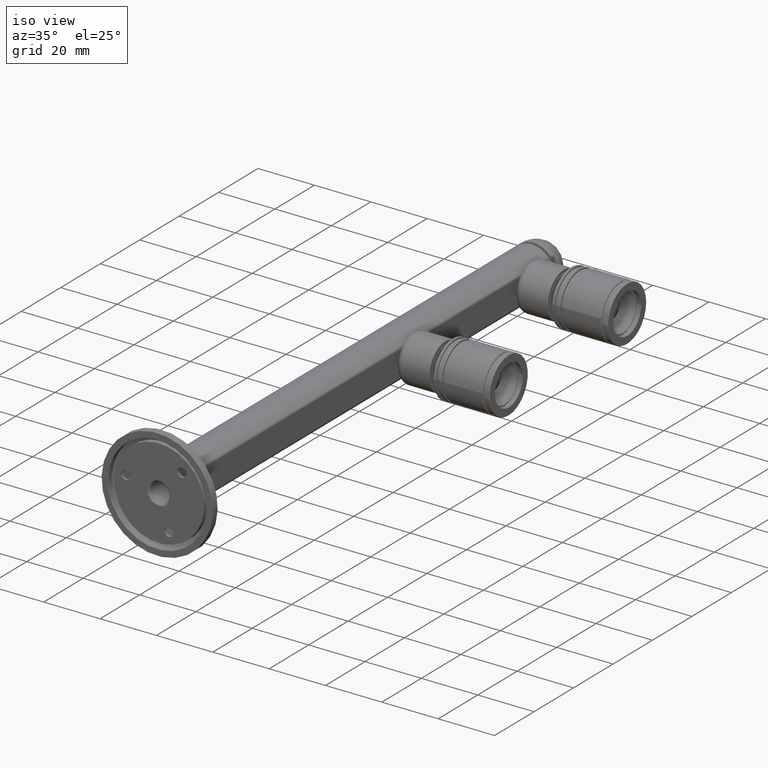
[diagram: clean part render]
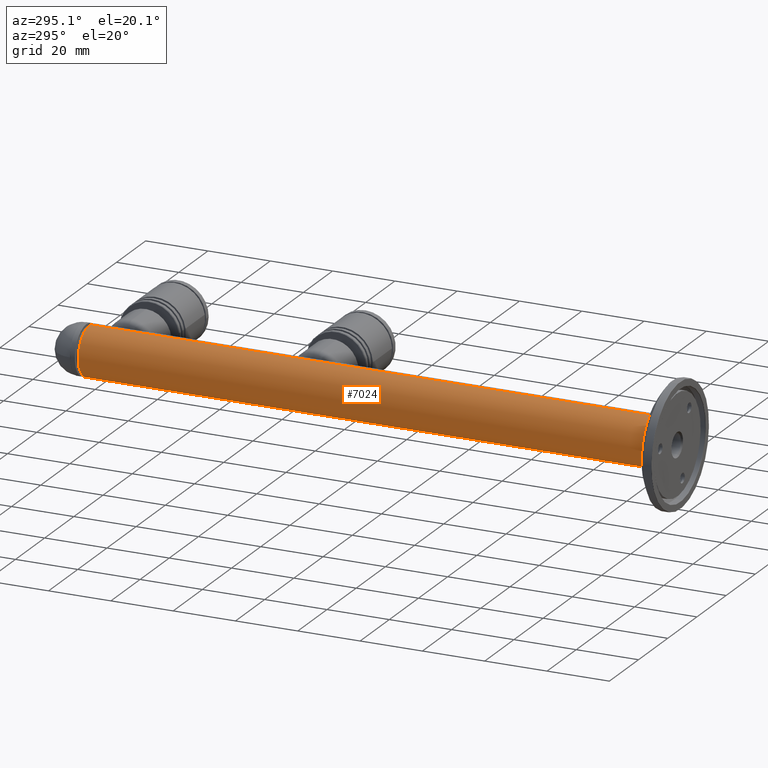
[diagram: tour spotlight — one face highlighted and labeled with its STEP entity id]
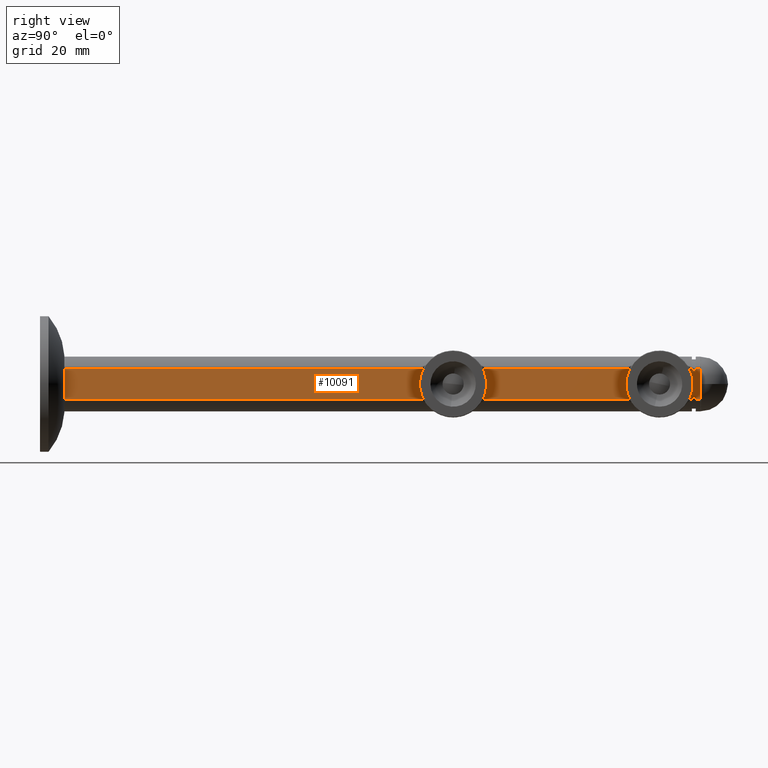
[diagram: tour spotlight — one face highlighted and labeled with its STEP entity id]
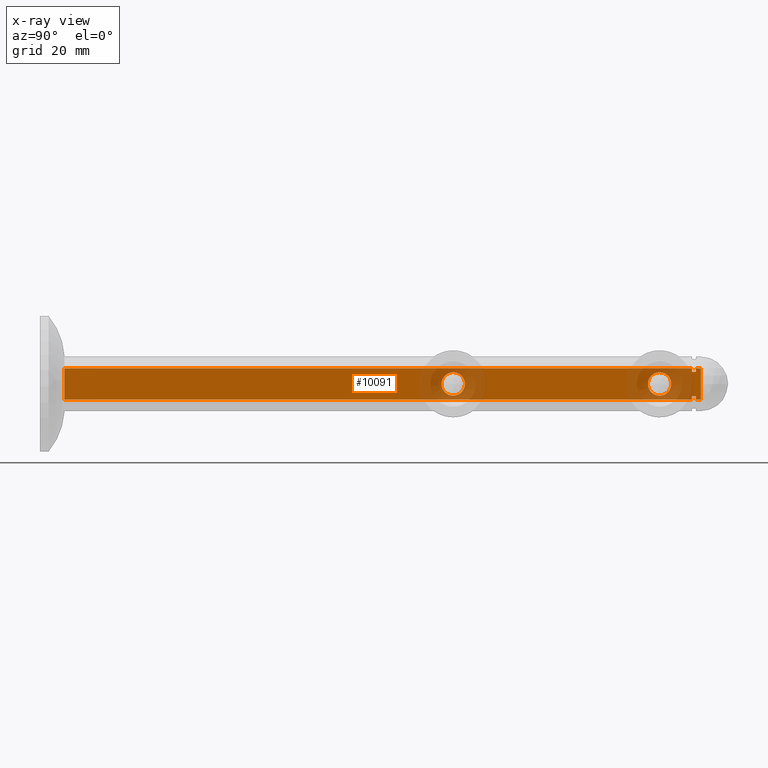
[diagram: x-ray of the same camera — body ghosted, this tour face saturated]
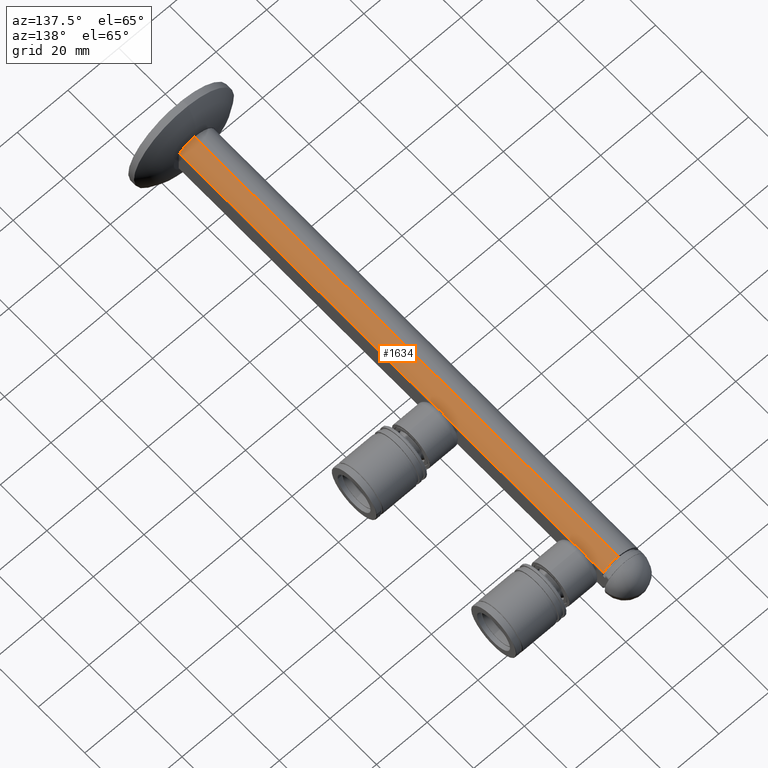
[diagram: tour spotlight — one face highlighted and labeled with its STEP entity id]
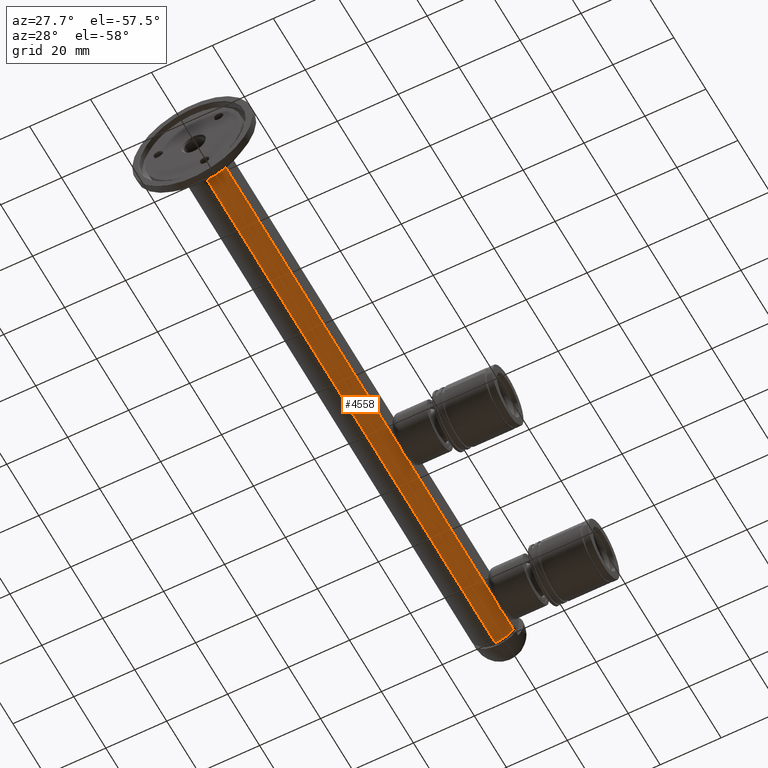
[diagram: tour spotlight — one face highlighted and labeled with its STEP entity id]
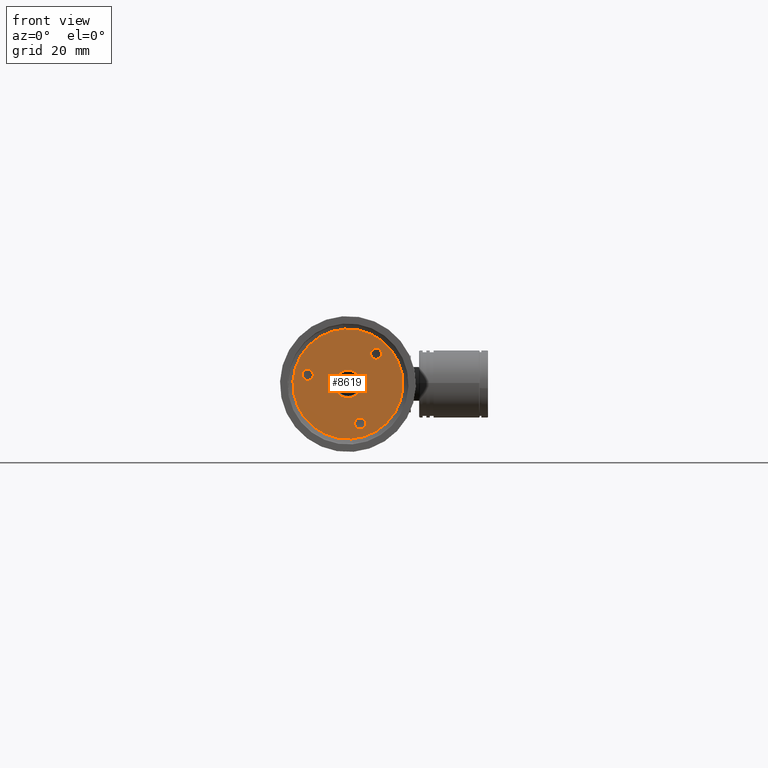
[diagram: tour spotlight — one face highlighted and labeled with its STEP entity id]
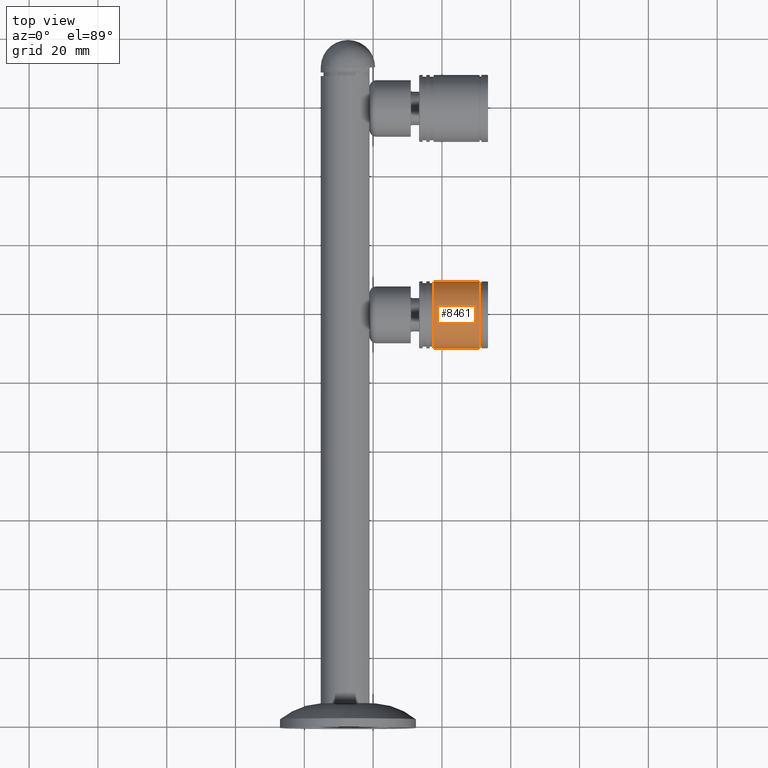
[diagram: tour spotlight — one face highlighted and labeled with its STEP entity id]
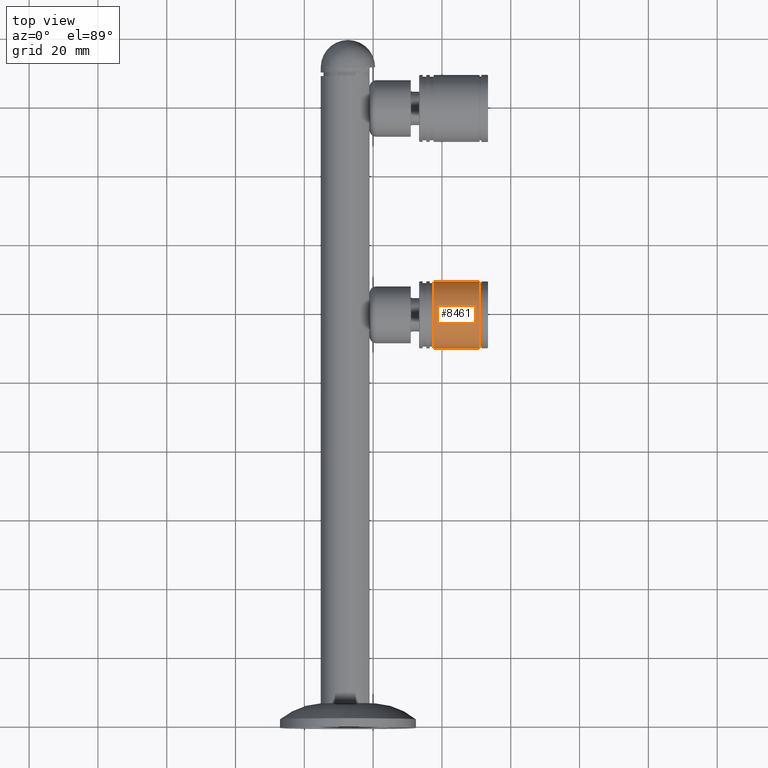
[diagram: tour spotlight — one face highlighted and labeled with its STEP entity id]
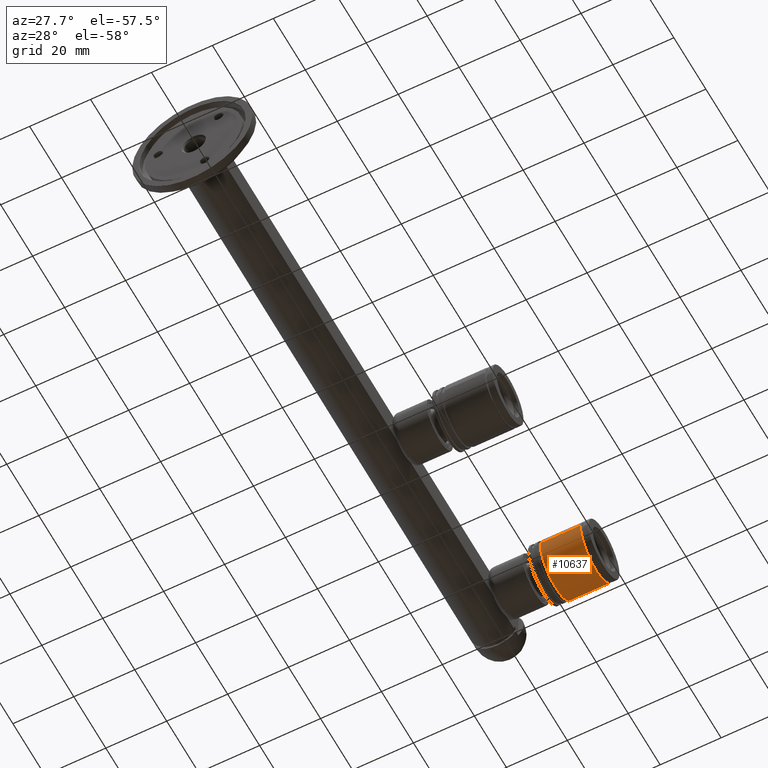
[diagram: tour spotlight — one face highlighted and labeled with its STEP entity id]
A machine part: a face-by-face anatomy tour. The part has 650 B-rep faces; the first image is the clean iso view, then the 8 largest visible faces are spotlighted one at a time (largest first), each with its STEP entity span.

Face 1 — auxiliary view, entity #7024. In plain terms, the highlighted cylindrical surface (edge-blend (fillet) strip) has radius 7.95 mm, axis along (-0, -1, -0).
Definition (entity closure, byte-faithful):
#293 = CARTESIAN_POINT ( 'NONE',  ( 9.735942053221458872E-16, 0.000000000000000000, 7.950000000000000178 ) ) ;
#889 = EDGE_CURVE ( 'NONE', #8870, #13248, #13762, .T. ) ;
#927 = CARTESIAN_POINT ( 'NONE',  ( 0.000000000000000000, 185.0000000000000000, -7.950000000000000178 ) ) ;
#2149 = CARTESIAN_POINT ( 'NONE',  ( 9.735942053221458872E-16, 185.0000000000000000, 7.950000000000000178 ) ) ;
#2219 = LINE ( 'NONE', #2149, #6112 ) ;
#2813 = DIRECTION ( 'NONE',  ( -0.000000000000000000, -1.000000000000000000, -0.000000000000000000 ) ) ;
#3925 = DIRECTION ( 'NONE',  ( 0.000000000000000000, 0.000000000000000000, 1.000000000000000000 ) ) ;
#3996 = ORIENTED_EDGE ( 'NONE', *, *, #7593, .F. ) ;
#4063 = EDGE_CURVE ( 'NONE', #9819, #13248, #2219, .T. ) ;
#4676 = EDGE_CURVE ( 'NONE', #10901, #8870, #13458, .T. ) ;
#5193 = DIRECTION ( 'NONE',  ( 0.000000000000000000, 1.000000000000000000, 0.000000000000000000 ) ) ;
#6112 = VECTOR ( 'NONE', #18339, 1000.000000000000000 ) ;
#7024 = ADVANCED_FACE ( 'NONE', ( #14726 ), #18285, .T. ) ;
#7562 = DIRECTION ( 'NONE',  ( 0.000000000000000000, 1.000000000000000000, 0.000000000000000000 ) ) ;
#7593 = EDGE_CURVE ( 'NONE', #10901, #9819, #16328, .T. ) ;
#8354 = CARTESIAN_POINT ( 'NONE',  ( 0.000000000000000000, 0.000000000000000000, 0.000000000000000000 ) ) ;
#8424 = CARTESIAN_POINT ( 'NONE',  ( 0.000000000000000000, 0.000000000000000000, -7.950000000000000178 ) ) ;
#8798 = DIRECTION ( 'NONE',  ( 0.000000000000000000, 0.000000000000000000, -1.000000000000000000 ) ) ;
#8870 = VERTEX_POINT ( 'NONE', #8424 ) ;
#9181 = CARTESIAN_POINT ( 'NONE',  ( 9.735942053221458872E-16, 182.4000000000000057, 7.950000000000000178 ) ) ;
#9605 = AXIS2_PLACEMENT_3D ( 'NONE', #8354, #5193, #3925 ) ;
#9819 = VERTEX_POINT ( 'NONE', #9181 ) ;
#10901 = VERTEX_POINT ( 'NONE', #17433 ) ;
#11238 = DIRECTION ( 'NONE',  ( -0.000000000000000000, -1.000000000000000000, -0.000000000000000000 ) ) ;
#11268 = ORIENTED_EDGE ( 'NONE', *, *, #4676, .T. ) ;
#11863 = EDGE_LOOP ( 'NONE', ( #13509, #3996, #11268, #13135 ) ) ;
#12003 = DIRECTION ( 'NONE',  ( 0.000000000000000000, 0.000000000000000000, 1.000000000000000000 ) ) ;
#12068 = CARTESIAN_POINT ( 'NONE',  ( 0.000000000000000000, 182.4000000000000057, 0.000000000000000000 ) ) ;
#13135 = ORIENTED_EDGE ( 'NONE', *, *, #889, .T. ) ;
#13248 = VERTEX_POINT ( 'NONE', #293 ) ;
#13458 = LINE ( 'NONE', #927, #16460 ) ;
#13509 = ORIENTED_EDGE ( 'NONE', *, *, #4063, .F. ) ;
#13762 = CIRCLE ( 'NONE', #9605, 7.950000000000000178 ) ;
#14726 = FACE_OUTER_BOUND ( 'NONE', #11863, .T. ) ;
#15981 = CARTESIAN_POINT ( 'NONE',  ( 0.000000000000000000, 185.0000000000000000, 0.000000000000000000 ) ) ;
#16328 = CIRCLE ( 'NONE', #16488, 7.950000000000000178 ) ;
#16460 = VECTOR ( 'NONE', #11238, 1000.000000000000000 ) ;
#16488 = AXIS2_PLACEMENT_3D ( 'NONE', #12068, #7562, #12003 ) ;
#17433 = CARTESIAN_POINT ( 'NONE',  ( 0.000000000000000000, 182.4000000000000057, -7.950000000000000178 ) ) ;
#18285 = CYLINDRICAL_SURFACE ( 'NONE', #18408, 7.950000000000000178 ) ;
#18339 = DIRECTION ( 'NONE',  ( -0.000000000000000000, -1.000000000000000000, -0.000000000000000000 ) ) ;
#18408 = AXIS2_PLACEMENT_3D ( 'NONE', #15981, #2813, #8798 ) ;

Face 2 — right view, entity #10091. An x-ray twin of the same camera follows (body ghosted, this face saturated) — the face is partly hidden behind the body. In plain terms, the highlighted planar face has unit normal (-1, 0, 0).
Definition (entity closure, byte-faithful):
#9 = VECTOR ( 'NONE', #13268, 1000.000000000000000 ) ;
#227 = CARTESIAN_POINT ( 'NONE',  ( 6.249999999999999112, 112.9999999999999858, 0.000000000000000000 ) ) ;
#623 = EDGE_LOOP ( 'NONE', ( #18180, #2310, #14747, #11981, #6236, #10386, #4855, #8418, #3265, #6116, #2063, #15672 ) ) ;
#1025 = CARTESIAN_POINT ( 'NONE',  ( 6.249999999999999112, 182.4000000000000057, -4.913247398615300021 ) ) ;
#1067 = CARTESIAN_POINT ( 'NONE',  ( 6.249999999999999112, 183.5000000000000000, 3.472751070837068799 ) ) ;
#1112 = DIRECTION ( 'NONE',  ( 0.000000000000000000, 0.000000000000000000, 1.000000000000000000 ) ) ;
#1201 = VERTEX_POINT ( 'NONE', #18363 ) ;
#1567 = DIRECTION ( 'NONE',  ( 0.000000000000000000, 0.000000000000000000, -1.000000000000000000 ) ) ;
#1696 = VECTOR ( 'NONE', #2816, 1000.000000000000000 ) ;
#1698 = LINE ( 'NONE', #12581, #9046 ) ;
#1924 = AXIS2_PLACEMENT_3D ( 'NONE', #4332, #17668, #11743 ) ;
#2006 = DIRECTION ( 'NONE',  ( 1.000000000000000000, 0.000000000000000000, 0.000000000000000000 ) ) ;
#2063 = ORIENTED_EDGE ( 'NONE', *, *, #4550, .T. ) ;
#2290 = VERTEX_POINT ( 'NONE', #17352 ) ;
#2310 = ORIENTED_EDGE ( 'NONE', *, *, #11862, .T. ) ;
#2314 = VERTEX_POINT ( 'NONE', #5930 ) ;
#2355 = EDGE_CURVE ( 'NONE', #7978, #5482, #5245, .T. ) ;
#2816 = DIRECTION ( 'NONE',  ( 0.000000000000000000, -1.000000000000000000, 0.000000000000000000 ) ) ;
#3265 = ORIENTED_EDGE ( 'NONE', *, *, #2355, .F. ) ;
#3290 = LINE ( 'NONE', #15748, #1696 ) ;
#3313 = CARTESIAN_POINT ( 'NONE',  ( 6.249999999999999112, 112.9999999999999858, 3.399999999999999911 ) ) ;
#3527 = PLANE ( 'NONE',  #4284 ) ;
#3697 = EDGE_CURVE ( 'NONE', #10555, #2290, #12343, .T. ) ;
#3762 = DIRECTION ( 'NONE',  ( -0.000000000000000000, 1.000000000000000000, -0.000000000000000000 ) ) ;
#3899 = LINE ( 'NONE', #13740, #17707 ) ;
#4032 = LINE ( 'NONE', #15488, #7698 ) ;
#4138 = EDGE_CURVE ( 'NONE', #11061, #1201, #17169, .T. ) ;
#4284 = AXIS2_PLACEMENT_3D ( 'NONE', #8264, #14194, #1112 ) ;
#4332 = CARTESIAN_POINT ( 'NONE',  ( 6.249999999999999112, 173.0000000000000000, 0.000000000000000000 ) ) ;
#4534 = FACE_OUTER_BOUND ( 'NONE', #623, .T. ) ;
#4550 = EDGE_CURVE ( 'NONE', #17150, #18410, #18521, .T. ) ;
#4855 = ORIENTED_EDGE ( 'NONE', *, *, #17837, .T. ) ;
#4887 = VECTOR ( 'NONE', #13650, 1000.000000000000000 ) ;
#5245 = LINE ( 'NONE', #10557, #9 ) ;
#5482 = VERTEX_POINT ( 'NONE', #15550 ) ;
#5508 = LINE ( 'NONE', #14609, #11721 ) ;
#5559 = ORIENTED_EDGE ( 'NONE', *, *, #10217, .F. ) ;
#5560 = EDGE_CURVE ( 'NONE', #12448, #7849, #11842, .T. ) ;
#5930 = CARTESIAN_POINT ( 'NONE',  ( 6.249999999999999112, 112.9999999999999858, -3.399999999999999911 ) ) ;
#5979 = VERTEX_POINT ( 'NONE', #6306 ) ;
#6116 = ORIENTED_EDGE ( 'NONE', *, *, #16474, .T. ) ;
#6236 = ORIENTED_EDGE ( 'NONE', *, *, #18308, .F. ) ;
#6306 = CARTESIAN_POINT ( 'NONE',  ( 6.249999999999999112, 183.5000000000000000, -4.554119014694281375 ) ) ;
#6387 = CARTESIAN_POINT ( 'NONE',  ( 6.249999999999999112, 182.4000000000000057, -3.472751070837068799 ) ) ;
#6548 = CARTESIAN_POINT ( 'NONE',  ( 6.249999999999999112, 185.0000000000000000, -4.554119014694281375 ) ) ;
#6670 = VERTEX_POINT ( 'NONE', #16225 ) ;
#6913 = CARTESIAN_POINT ( 'NONE',  ( 6.249999999999999112, 183.5000000000000000, 4.554119014694282264 ) ) ;
#7054 = CARTESIAN_POINT ( 'NONE',  ( 6.249999999999999112, 185.0000000000000000, 4.554119014694282264 ) ) ;
#7289 = CIRCLE ( 'NONE', #11186, 3.399999999999999911 ) ;
#7405 = EDGE_CURVE ( 'NONE', #1201, #18410, #5508, .T. ) ;
#7480 = ORIENTED_EDGE ( 'NONE', *, *, #15280, .F. ) ;
#7502 = CIRCLE ( 'NONE', #11561, 3.399999999999999911 ) ;
#7698 = VECTOR ( 'NONE', #16843, 1000.000000000000000 ) ;
#7849 = VERTEX_POINT ( 'NONE', #9683 ) ;
#7978 = VERTEX_POINT ( 'NONE', #7054 ) ;
#8013 = DIRECTION ( 'NONE',  ( -0.000000000000000000, -0.000000000000000000, -1.000000000000000000 ) ) ;
#8264 = CARTESIAN_POINT ( 'NONE',  ( 6.249999999999999112, 185.0000000000000000, -4.913247398615300021 ) ) ;
#8282 = CARTESIAN_POINT ( 'NONE',  ( 6.249999999999999112, 0.000000000000000000, -4.554119014694281375 ) ) ;
#8418 = ORIENTED_EDGE ( 'NONE', *, *, #16999, .T. ) ;
#8456 = FACE_BOUND ( 'NONE', #13103, .T. ) ;
#8611 = EDGE_CURVE ( 'NONE', #14105, #2314, #7289, .T. ) ;
#8614 = CARTESIAN_POINT ( 'NONE',  ( 6.249999999999999112, 0.000000000000000000, -4.913247398615300021 ) ) ;
#8826 = LINE ( 'NONE', #6387, #4887 ) ;
#8873 = CIRCLE ( 'NONE', #12842, 3.400000000000011013 ) ;
#9046 = VECTOR ( 'NONE', #3762, 1000.000000000000000 ) ;
#9108 = VERTEX_POINT ( 'NONE', #12525 ) ;
#9387 = DIRECTION ( 'NONE',  ( 0.000000000000000000, 0.000000000000000000, -1.000000000000000000 ) ) ;
#9683 = CARTESIAN_POINT ( 'NONE',  ( 6.249999999999999112, 173.0000000000000000, -3.400000000000011013 ) ) ;
#10091 = ADVANCED_FACE ( 'NONE', ( #13045, #8456, #4534 ), #3527, .F. ) ;
#10217 = EDGE_CURVE ( 'NONE', #2314, #14105, #7502, .T. ) ;
#10322 = DIRECTION ( 'NONE',  ( -0.000000000000000000, 1.000000000000000000, -0.000000000000000000 ) ) ;
#10386 = ORIENTED_EDGE ( 'NONE', *, *, #17655, .F. ) ;
#10555 = VERTEX_POINT ( 'NONE', #8282 ) ;
#10557 = CARTESIAN_POINT ( 'NONE',  ( 6.249999999999999112, 185.0000000000000000, -4.913247398615300021 ) ) ;
#10953 = ORIENTED_EDGE ( 'NONE', *, *, #8611, .F. ) ;
#11061 = VERTEX_POINT ( 'NONE', #16499 ) ;
#11186 = AXIS2_PLACEMENT_3D ( 'NONE', #16606, #2006, #9387 ) ;
#11324 = CARTESIAN_POINT ( 'NONE',  ( 6.249999999999999112, 183.5000000000000000, -4.913247398615300021 ) ) ;
#11561 = AXIS2_PLACEMENT_3D ( 'NONE', #227, #11695, #1567 ) ;
#11573 = DIRECTION ( 'NONE',  ( 0.000000000000000000, 0.000000000000000000, -1.000000000000000000 ) ) ;
#11630 = VECTOR ( 'NONE', #15643, 1000.000000000000000 ) ;
#11695 = DIRECTION ( 'NONE',  ( 1.000000000000000000, 0.000000000000000000, 0.000000000000000000 ) ) ;
#11721 = VECTOR ( 'NONE', #10322, 1000.000000000000000 ) ;
#11743 = DIRECTION ( 'NONE',  ( 0.000000000000000000, 0.000000000000000000, -1.000000000000000000 ) ) ;
#11842 = CIRCLE ( 'NONE', #1924, 3.400000000000011013 ) ;
#11862 = EDGE_CURVE ( 'NONE', #11061, #6670, #4032, .T. ) ;
#11981 = ORIENTED_EDGE ( 'NONE', *, *, #3697, .T. ) ;
#12339 = DIRECTION ( 'NONE',  ( 0.000000000000000000, 0.000000000000000000, -1.000000000000000000 ) ) ;
#12343 = LINE ( 'NONE', #6548, #14192 ) ;
#12401 = EDGE_LOOP ( 'NONE', ( #7480, #17997 ) ) ;
#12448 = VERTEX_POINT ( 'NONE', #17940 ) ;
#12465 = VERTEX_POINT ( 'NONE', #14931 ) ;
#12525 = CARTESIAN_POINT ( 'NONE',  ( 6.249999999999999112, 183.5000000000000000, -3.472751070837068799 ) ) ;
#12534 = DIRECTION ( 'NONE',  ( 0.000000000000000000, 0.000000000000000000, -1.000000000000000000 ) ) ;
#12581 = CARTESIAN_POINT ( 'NONE',  ( 6.249999999999999112, 185.0000000000000000, -4.554119014694281375 ) ) ;
#12842 = AXIS2_PLACEMENT_3D ( 'NONE', #14256, #12906, #18688 ) ;
#12906 = DIRECTION ( 'NONE',  ( 1.000000000000000000, 0.000000000000000000, 0.000000000000000000 ) ) ;
#12954 = DIRECTION ( 'NONE',  ( -0.000000000000000000, 1.000000000000000000, -0.000000000000000000 ) ) ;
#13045 = FACE_BOUND ( 'NONE', #12401, .T. ) ;
#13103 = EDGE_LOOP ( 'NONE', ( #5559, #10953 ) ) ;
#13268 = DIRECTION ( 'NONE',  ( -0.000000000000000000, -0.000000000000000000, -1.000000000000000000 ) ) ;
#13650 = DIRECTION ( 'NONE',  ( 0.000000000000000000, -1.000000000000000000, 0.000000000000000000 ) ) ;
#13672 = VECTOR ( 'NONE', #8013, 1000.000000000000000 ) ;
#13740 = CARTESIAN_POINT ( 'NONE',  ( 6.249999999999999112, 182.4000000000000057, -4.913247398615300021 ) ) ;
#14105 = VERTEX_POINT ( 'NONE', #3313 ) ;
#14192 = VECTOR ( 'NONE', #12954, 1000.000000000000000 ) ;
#14194 = DIRECTION ( 'NONE',  ( -1.000000000000000000, 0.000000000000000000, 0.000000000000000000 ) ) ;
#14256 = CARTESIAN_POINT ( 'NONE',  ( 6.249999999999999112, 173.0000000000000000, 0.000000000000000000 ) ) ;
#14609 = CARTESIAN_POINT ( 'NONE',  ( 6.249999999999999112, 182.4000000000000057, 3.472751070837068799 ) ) ;
#14747 = ORIENTED_EDGE ( 'NONE', *, *, #16026, .T. ) ;
#14931 = CARTESIAN_POINT ( 'NONE',  ( 6.249999999999999112, 182.4000000000000057, -3.472751070837068799 ) ) ;
#15280 = EDGE_CURVE ( 'NONE', #7849, #12448, #8873, .T. ) ;
#15296 = LINE ( 'NONE', #11324, #15504 ) ;
#15488 = CARTESIAN_POINT ( 'NONE',  ( 6.249999999999999112, 185.0000000000000000, 4.554119014694282264 ) ) ;
#15504 = VECTOR ( 'NONE', #11573, 1000.000000000000000 ) ;
#15550 = CARTESIAN_POINT ( 'NONE',  ( 6.249999999999999112, 185.0000000000000000, -4.554119014694281375 ) ) ;
#15643 = DIRECTION ( 'NONE',  ( 0.000000000000000000, 0.000000000000000000, -1.000000000000000000 ) ) ;
#15672 = ORIENTED_EDGE ( 'NONE', *, *, #7405, .F. ) ;
#15748 = CARTESIAN_POINT ( 'NONE',  ( 6.249999999999999112, 185.0000000000000000, 4.554119014694282264 ) ) ;
#16026 = EDGE_CURVE ( 'NONE', #6670, #10555, #17373, .T. ) ;
#16225 = CARTESIAN_POINT ( 'NONE',  ( 6.249999999999999112, 0.000000000000000000, 4.554119014694282264 ) ) ;
#16474 = EDGE_CURVE ( 'NONE', #7978, #17150, #3290, .T. ) ;
#16499 = CARTESIAN_POINT ( 'NONE',  ( 6.249999999999999112, 182.4000000000000057, 4.554119014694282264 ) ) ;
#16606 = CARTESIAN_POINT ( 'NONE',  ( 6.249999999999999112, 112.9999999999999858, 0.000000000000000000 ) ) ;
#16843 = DIRECTION ( 'NONE',  ( 0.000000000000000000, -1.000000000000000000, 0.000000000000000000 ) ) ;
#16924 = VECTOR ( 'NONE', #12534, 1000.000000000000000 ) ;
#16999 = EDGE_CURVE ( 'NONE', #5979, #5482, #1698, .T. ) ;
#17150 = VERTEX_POINT ( 'NONE', #6913 ) ;
#17169 = LINE ( 'NONE', #1025, #11630 ) ;
#17352 = CARTESIAN_POINT ( 'NONE',  ( 6.249999999999999112, 182.4000000000000057, -4.554119014694281375 ) ) ;
#17373 = LINE ( 'NONE', #8614, #13672 ) ;
#17655 = EDGE_CURVE ( 'NONE', #9108, #12465, #8826, .T. ) ;
#17668 = DIRECTION ( 'NONE',  ( 1.000000000000000000, 0.000000000000000000, 0.000000000000000000 ) ) ;
#17707 = VECTOR ( 'NONE', #12339, 1000.000000000000000 ) ;
#17837 = EDGE_CURVE ( 'NONE', #9108, #5979, #15296, .T. ) ;
#17940 = CARTESIAN_POINT ( 'NONE',  ( 6.249999999999999112, 173.0000000000000000, 3.400000000000011013 ) ) ;
#17997 = ORIENTED_EDGE ( 'NONE', *, *, #5560, .F. ) ;
#18180 = ORIENTED_EDGE ( 'NONE', *, *, #4138, .F. ) ;
#18308 = EDGE_CURVE ( 'NONE', #12465, #2290, #3899, .T. ) ;
#18316 = CARTESIAN_POINT ( 'NONE',  ( 6.249999999999999112, 183.5000000000000000, -4.913247398615300021 ) ) ;
#18363 = CARTESIAN_POINT ( 'NONE',  ( 6.249999999999999112, 182.4000000000000057, 3.472751070837068799 ) ) ;
#18410 = VERTEX_POINT ( 'NONE', #1067 ) ;
#18521 = LINE ( 'NONE', #18316, #16924 ) ;
#18688 = DIRECTION ( 'NONE',  ( 0.000000000000000000, 0.000000000000000000, -1.000000000000000000 ) ) ;

Face 3 — auxiliary view, entity #1634. In plain terms, the highlighted cylindrical surface (edge-blend (fillet) strip) has radius 7.95 mm, axis along (-0, -1, -0).
Definition (entity closure, byte-faithful):
#102 = ORIENTED_EDGE ( 'NONE', *, *, #16082, .T. ) ;
#293 = CARTESIAN_POINT ( 'NONE',  ( 9.735942053221458872E-16, 0.000000000000000000, 7.950000000000000178 ) ) ;
#1325 = DIRECTION ( 'NONE',  ( 0.000000000000000000, 1.000000000000000000, 0.000000000000000000 ) ) ;
#1634 = ADVANCED_FACE ( 'NONE', ( #11942 ), #8485, .T. ) ;
#1794 = EDGE_LOOP ( 'NONE', ( #6318, #2459, #102, #3340 ) ) ;
#2149 = CARTESIAN_POINT ( 'NONE',  ( 9.735942053221458872E-16, 185.0000000000000000, 7.950000000000000178 ) ) ;
#2219 = LINE ( 'NONE', #2149, #6112 ) ;
#2459 = ORIENTED_EDGE ( 'NONE', *, *, #4063, .T. ) ;
#3212 = CARTESIAN_POINT ( 'NONE',  ( 6.005395683453237154, 182.4000000000000057, 5.209387937671875690 ) ) ;
#3340 = ORIENTED_EDGE ( 'NONE', *, *, #5589, .T. ) ;
#3766 = CIRCLE ( 'NONE', #7528, 7.950000000000000178 ) ;
#3847 = AXIS2_PLACEMENT_3D ( 'NONE', #8276, #12735, #9825 ) ;
#4063 = EDGE_CURVE ( 'NONE', #9819, #13248, #2219, .T. ) ;
#5589 = EDGE_CURVE ( 'NONE', #9614, #8998, #6770, .T. ) ;
#6112 = VECTOR ( 'NONE', #18339, 1000.000000000000000 ) ;
#6318 = ORIENTED_EDGE ( 'NONE', *, *, #12692, .F. ) ;
#6770 = LINE ( 'NONE', #13024, #18509 ) ;
#7528 = AXIS2_PLACEMENT_3D ( 'NONE', #7726, #13647, #13961 ) ;
#7726 = CARTESIAN_POINT ( 'NONE',  ( 0.000000000000000000, 0.000000000000000000, 0.000000000000000000 ) ) ;
#7731 = DIRECTION ( 'NONE',  ( 0.000000000000000000, 0.000000000000000000, -1.000000000000000000 ) ) ;
#8135 = CIRCLE ( 'NONE', #3847, 7.950000000000000178 ) ;
#8276 = CARTESIAN_POINT ( 'NONE',  ( 0.000000000000000000, 182.4000000000000057, 0.000000000000000000 ) ) ;
#8485 = CYLINDRICAL_SURFACE ( 'NONE', #14430, 7.950000000000000178 ) ;
#8998 = VERTEX_POINT ( 'NONE', #3212 ) ;
#9181 = CARTESIAN_POINT ( 'NONE',  ( 9.735942053221458872E-16, 182.4000000000000057, 7.950000000000000178 ) ) ;
#9614 = VERTEX_POINT ( 'NONE', #14115 ) ;
#9819 = VERTEX_POINT ( 'NONE', #9181 ) ;
#9825 = DIRECTION ( 'NONE',  ( 0.000000000000000000, 0.000000000000000000, 1.000000000000000000 ) ) ;
#11942 = FACE_OUTER_BOUND ( 'NONE', #1794, .T. ) ;
#12301 = DIRECTION ( 'NONE',  ( -0.000000000000000000, -1.000000000000000000, -0.000000000000000000 ) ) ;
#12692 = EDGE_CURVE ( 'NONE', #9819, #8998, #8135, .T. ) ;
#12735 = DIRECTION ( 'NONE',  ( 0.000000000000000000, 1.000000000000000000, 0.000000000000000000 ) ) ;
#13024 = CARTESIAN_POINT ( 'NONE',  ( 6.005395683453238043, 185.0000000000000000, 5.209387937671876578 ) ) ;
#13248 = VERTEX_POINT ( 'NONE', #293 ) ;
#13647 = DIRECTION ( 'NONE',  ( 0.000000000000000000, 1.000000000000000000, 0.000000000000000000 ) ) ;
#13961 = DIRECTION ( 'NONE',  ( 0.000000000000000000, 0.000000000000000000, 1.000000000000000000 ) ) ;
#14115 = CARTESIAN_POINT ( 'NONE',  ( 6.005395683453237154, 0.000000000000000000, 5.209387937671875690 ) ) ;
#14430 = AXIS2_PLACEMENT_3D ( 'NONE', #16483, #12301, #7731 ) ;
#16082 = EDGE_CURVE ( 'NONE', #13248, #9614, #3766, .T. ) ;
#16483 = CARTESIAN_POINT ( 'NONE',  ( 0.000000000000000000, 185.0000000000000000, 0.000000000000000000 ) ) ;
#18339 = DIRECTION ( 'NONE',  ( -0.000000000000000000, -1.000000000000000000, -0.000000000000000000 ) ) ;
#18509 = VECTOR ( 'NONE', #1325, 1000.000000000000000 ) ;

Face 4 — auxiliary view, entity #4558. In plain terms, the highlighted cylindrical surface (edge-blend (fillet) strip) has radius 7.95 mm, axis along (-0, -1, -0).
Definition (entity closure, byte-faithful):
#162 = EDGE_CURVE ( 'NONE', #10865, #8870, #14016, .T. ) ;
#639 = CYLINDRICAL_SURFACE ( 'NONE', #11627, 7.950000000000000178 ) ;
#834 = DIRECTION ( 'NONE',  ( 0.000000000000000000, 1.000000000000000000, 0.000000000000000000 ) ) ;
#927 = CARTESIAN_POINT ( 'NONE',  ( 0.000000000000000000, 185.0000000000000000, -7.950000000000000178 ) ) ;
#2020 = CARTESIAN_POINT ( 'NONE',  ( 0.000000000000000000, 0.000000000000000000, 0.000000000000000000 ) ) ;
#2347 = AXIS2_PLACEMENT_3D ( 'NONE', #2020, #834, #13844 ) ;
#4558 = ADVANCED_FACE ( 'NONE', ( #11861 ), #639, .T. ) ;
#4676 = EDGE_CURVE ( 'NONE', #10901, #8870, #13458, .T. ) ;
#5228 = AXIS2_PLACEMENT_3D ( 'NONE', #13704, #16677, #15152 ) ;
#5454 = CARTESIAN_POINT ( 'NONE',  ( 6.005395683453237154, 182.4000000000000057, -5.209387937671875690 ) ) ;
#5664 = EDGE_CURVE ( 'NONE', #9208, #10901, #13891, .T. ) ;
#5743 = VECTOR ( 'NONE', #10882, 1000.000000000000000 ) ;
#6934 = DIRECTION ( 'NONE',  ( 0.000000000000000000, 0.000000000000000000, -1.000000000000000000 ) ) ;
#6975 = ORIENTED_EDGE ( 'NONE', *, *, #162, .T. ) ;
#7981 = ORIENTED_EDGE ( 'NONE', *, *, #5664, .F. ) ;
#8424 = CARTESIAN_POINT ( 'NONE',  ( 0.000000000000000000, 0.000000000000000000, -7.950000000000000178 ) ) ;
#8870 = VERTEX_POINT ( 'NONE', #8424 ) ;
#9208 = VERTEX_POINT ( 'NONE', #5454 ) ;
#9899 = LINE ( 'NONE', #18086, #5743 ) ;
#10865 = VERTEX_POINT ( 'NONE', #12976 ) ;
#10882 = DIRECTION ( 'NONE',  ( -0.000000000000000000, -1.000000000000000000, -0.000000000000000000 ) ) ;
#10901 = VERTEX_POINT ( 'NONE', #17433 ) ;
#11238 = DIRECTION ( 'NONE',  ( -0.000000000000000000, -1.000000000000000000, -0.000000000000000000 ) ) ;
#11627 = AXIS2_PLACEMENT_3D ( 'NONE', #14011, #14206, #6934 ) ;
#11861 = FACE_OUTER_BOUND ( 'NONE', #17512, .T. ) ;
#11939 = ORIENTED_EDGE ( 'NONE', *, *, #17624, .T. ) ;
#12976 = CARTESIAN_POINT ( 'NONE',  ( 6.005395683453237154, 0.000000000000000000, -5.209387937671875690 ) ) ;
#13458 = LINE ( 'NONE', #927, #16460 ) ;
#13704 = CARTESIAN_POINT ( 'NONE',  ( 0.000000000000000000, 182.4000000000000057, 0.000000000000000000 ) ) ;
#13844 = DIRECTION ( 'NONE',  ( 0.000000000000000000, 0.000000000000000000, 1.000000000000000000 ) ) ;
#13891 = CIRCLE ( 'NONE', #5228, 7.950000000000000178 ) ;
#14011 = CARTESIAN_POINT ( 'NONE',  ( 0.000000000000000000, 185.0000000000000000, 0.000000000000000000 ) ) ;
#14016 = CIRCLE ( 'NONE', #2347, 7.950000000000000178 ) ;
#14206 = DIRECTION ( 'NONE',  ( -0.000000000000000000, -1.000000000000000000, -0.000000000000000000 ) ) ;
#15152 = DIRECTION ( 'NONE',  ( 0.000000000000000000, 0.000000000000000000, 1.000000000000000000 ) ) ;
#15839 = ORIENTED_EDGE ( 'NONE', *, *, #4676, .F. ) ;
#16460 = VECTOR ( 'NONE', #11238, 1000.000000000000000 ) ;
#16677 = DIRECTION ( 'NONE',  ( 0.000000000000000000, 1.000000000000000000, 0.000000000000000000 ) ) ;
#17433 = CARTESIAN_POINT ( 'NONE',  ( 0.000000000000000000, 182.4000000000000057, -7.950000000000000178 ) ) ;
#17512 = EDGE_LOOP ( 'NONE', ( #15839, #7981, #11939, #6975 ) ) ;
#17624 = EDGE_CURVE ( 'NONE', #9208, #10865, #9899, .T. ) ;
#18086 = CARTESIAN_POINT ( 'NONE',  ( 6.005395683453238043, 185.0000000000000000, -5.209387937671876578 ) ) ;

Face 5 — front view, entity #8619. In plain terms, the highlighted planar face has unit normal (0, -1, 0).
Definition (entity closure, byte-faithful):
#31 = DIRECTION ( 'NONE',  ( 0.000000000000000000, 1.000000000000000000, 0.000000000000000000 ) ) ;
#218 = EDGE_LOOP ( 'NONE', ( #2288, #11312 ) ) ;
#221 = DIRECTION ( 'NONE',  ( 0.000000000000000000, 0.000000000000000000, -1.000000000000000000 ) ) ;
#432 = AXIS2_PLACEMENT_3D ( 'NONE', #11887, #3030, #17873 ) ;
#508 = VERTEX_POINT ( 'NONE', #1323 ) ;
#611 = CIRCLE ( 'NONE', #17082, 3.999999999999989786 ) ;
#643 = DIRECTION ( 'NONE',  ( 0.000000000000000000, -1.000000000000000000, -0.000000000000000000 ) ) ;
#1136 = CARTESIAN_POINT ( 'NONE',  ( 0.000000000000000000, -2.188868108526292658E-16, 0.000000000000000000 ) ) ;
#1323 = CARTESIAN_POINT ( 'NONE',  ( -10.39230484541323740, 0.000000000000000000, 7.600000000000051159 ) ) ;
#1563 = CARTESIAN_POINT ( 'NONE',  ( 10.39230484541323740, 0.000000000000000000, 4.400000000000048317 ) ) ;
#1609 = AXIS2_PLACEMENT_3D ( 'NONE', #13951, #17046, #2049 ) ;
#1865 = CARTESIAN_POINT ( 'NONE',  ( 0.000000000000000000, -1.094434054263146329E-16, 0.000000000000000000 ) ) ;
#2049 = DIRECTION ( 'NONE',  ( 0.000000000000000000, 0.000000000000000000, -1.000000000000000000 ) ) ;
#2288 = ORIENTED_EDGE ( 'NONE', *, *, #12314, .T. ) ;
#2447 = DIRECTION ( 'NONE',  ( -0.000000000000000000, -1.000000000000000000, -0.000000000000000000 ) ) ;
#2506 = VERTEX_POINT ( 'NONE', #16690 ) ;
#2523 = DIRECTION ( 'NONE',  ( -0.000000000000000000, -1.000000000000000000, -0.000000000000000000 ) ) ;
#2649 = DIRECTION ( 'NONE',  ( -0.000000000000000000, -1.000000000000000000, -0.000000000000000000 ) ) ;
#2703 = CIRCLE ( 'NONE', #14110, 3.999999999999989786 ) ;
#2756 = CARTESIAN_POINT ( 'NONE',  ( 0.000000000000000000, 0.000000000000000000, -10.40000000000000036 ) ) ;
#3030 = DIRECTION ( 'NONE',  ( -0.000000000000000000, -1.000000000000000000, -0.000000000000000000 ) ) ;
#3153 = DIRECTION ( 'NONE',  ( 0.000000000000000000, 1.000000000000000000, 0.000000000000000000 ) ) ;
#3628 = DIRECTION ( 'NONE',  ( -0.000000000000000000, -1.000000000000000000, -0.000000000000000000 ) ) ;
#3839 = EDGE_LOOP ( 'NONE', ( #6017, #13092 ) ) ;
#3840 = FACE_BOUND ( 'NONE', #17302, .T. ) ;
#4062 = ORIENTED_EDGE ( 'NONE', *, *, #14735, .F. ) ;
#4313 = CARTESIAN_POINT ( 'NONE',  ( -10.39230484541323740, 0.000000000000000000, 4.400000000000048317 ) ) ;
#4327 = CIRCLE ( 'NONE', #13115, 1.600000000000001643 ) ;
#4761 = DIRECTION ( 'NONE',  ( 0.000000000000000000, 0.000000000000000000, -1.000000000000000000 ) ) ;
#4825 = AXIS2_PLACEMENT_3D ( 'NONE', #7806, #7619, #9296 ) ;
#5941 = DIRECTION ( 'NONE',  ( 0.000000000000000000, 0.000000000000000000, -1.000000000000000000 ) ) ;
#5993 = EDGE_CURVE ( 'NONE', #16529, #12627, #611, .T. ) ;
#6017 = ORIENTED_EDGE ( 'NONE', *, *, #10401, .F. ) ;
#6551 = EDGE_CURVE ( 'NONE', #2506, #7431, #6747, .T. ) ;
#6747 = CIRCLE ( 'NONE', #4825, 15.99999999999999645 ) ;
#7071 = AXIS2_PLACEMENT_3D ( 'NONE', #15973, #14442, #18981 ) ;
#7417 = VERTEX_POINT ( 'NONE', #19004 ) ;
#7431 = VERTEX_POINT ( 'NONE', #13352 ) ;
#7540 = CIRCLE ( 'NONE', #9369, 1.600000000000000755 ) ;
#7619 = DIRECTION ( 'NONE',  ( -0.000000000000000000, -1.000000000000000000, -0.000000000000000000 ) ) ;
#7745 = FACE_BOUND ( 'NONE', #3839, .T. ) ;
#7806 = CARTESIAN_POINT ( 'NONE',  ( 0.000000000000000000, -2.188868108526292658E-16, 0.000000000000000000 ) ) ;
#8343 = VERTEX_POINT ( 'NONE', #4313 ) ;
#8534 = ORIENTED_EDGE ( 'NONE', *, *, #13393, .F. ) ;
#8619 = ADVANCED_FACE ( 'NONE', ( #15580, #11655, #7745, #3840, #10732 ), #18215, .T. ) ;
#8995 = ORIENTED_EDGE ( 'NONE', *, *, #17228, .F. ) ;
#9296 = DIRECTION ( 'NONE',  ( 0.000000000000000000, 0.000000000000000000, -1.000000000000000000 ) ) ;
#9329 = CIRCLE ( 'NONE', #432, 1.600000000000000755 ) ;
#9369 = AXIS2_PLACEMENT_3D ( 'NONE', #18659, #2523, #18719 ) ;
#9515 = CIRCLE ( 'NONE', #15461, 1.600000000000001643 ) ;
#9843 = DIRECTION ( 'NONE',  ( 0.000000000000000000, 0.000000000000000000, -1.000000000000000000 ) ) ;
#10401 = EDGE_CURVE ( 'NONE', #7417, #17896, #17429, .T. ) ;
#10436 = CARTESIAN_POINT ( 'NONE',  ( 0.000000000000000000, -1.094434054263146329E-16, -3.999999999999989786 ) ) ;
#10587 = EDGE_LOOP ( 'NONE', ( #18140, #17190 ) ) ;
#10611 = AXIS2_PLACEMENT_3D ( 'NONE', #17962, #643, #4761 ) ;
#10732 = FACE_OUTER_BOUND ( 'NONE', #218, .T. ) ;
#11088 = DIRECTION ( 'NONE',  ( 0.000000000000000000, 0.000000000000000000, -1.000000000000000000 ) ) ;
#11108 = ORIENTED_EDGE ( 'NONE', *, *, #15492, .F. ) ;
#11312 = ORIENTED_EDGE ( 'NONE', *, *, #6551, .T. ) ;
#11655 = FACE_BOUND ( 'NONE', #17723, .T. ) ;
#11745 = CARTESIAN_POINT ( 'NONE',  ( 0.000000000000000000, -1.094434054263146329E-16, 0.000000000000000000 ) ) ;
#11887 = CARTESIAN_POINT ( 'NONE',  ( 0.000000000000000000, 0.000000000000000000, -12.00000000000000000 ) ) ;
#12314 = EDGE_CURVE ( 'NONE', #7431, #2506, #13449, .T. ) ;
#12627 = VERTEX_POINT ( 'NONE', #15434 ) ;
#12867 = CARTESIAN_POINT ( 'NONE',  ( -10.39230484541323740, 0.000000000000000000, 6.000000000000049738 ) ) ;
#12992 = DIRECTION ( 'NONE',  ( 0.000000000000000000, 0.000000000000000000, -1.000000000000000000 ) ) ;
#13092 = ORIENTED_EDGE ( 'NONE', *, *, #18975, .F. ) ;
#13115 = AXIS2_PLACEMENT_3D ( 'NONE', #18422, #3628, #11088 ) ;
#13352 = CARTESIAN_POINT ( 'NONE',  ( 0.000000000000000000, -2.188868108526292658E-16, -15.99999999999999645 ) ) ;
#13393 = EDGE_CURVE ( 'NONE', #508, #8343, #9515, .T. ) ;
#13449 = CIRCLE ( 'NONE', #18773, 15.99999999999999645 ) ;
#13951 = CARTESIAN_POINT ( 'NONE',  ( 10.39230484541323740, 0.000000000000000000, 6.000000000000049738 ) ) ;
#14110 = AXIS2_PLACEMENT_3D ( 'NONE', #11745, #31, #5941 ) ;
#14442 = DIRECTION ( 'NONE',  ( -0.000000000000000000, -1.000000000000000000, -0.000000000000000000 ) ) ;
#14735 = EDGE_CURVE ( 'NONE', #16189, #16007, #7540, .T. ) ;
#15434 = CARTESIAN_POINT ( 'NONE',  ( 4.898587196589400010E-16, -1.094434054263146329E-16, 3.999999999999989786 ) ) ;
#15461 = AXIS2_PLACEMENT_3D ( 'NONE', #12867, #2649, #12992 ) ;
#15492 = EDGE_CURVE ( 'NONE', #16007, #16189, #9329, .T. ) ;
#15580 = FACE_BOUND ( 'NONE', #10587, .T. ) ;
#15973 = CARTESIAN_POINT ( 'NONE',  ( -10.39230484541323740, 0.000000000000000000, 6.000000000000049738 ) ) ;
#16007 = VERTEX_POINT ( 'NONE', #2756 ) ;
#16189 = VERTEX_POINT ( 'NONE', #17124 ) ;
#16529 = VERTEX_POINT ( 'NONE', #10436 ) ;
#16690 = CARTESIAN_POINT ( 'NONE',  ( 1.959434878635764737E-15, -2.188868108526292658E-16, 15.99999999999999645 ) ) ;
#17046 = DIRECTION ( 'NONE',  ( -0.000000000000000000, -1.000000000000000000, -0.000000000000000000 ) ) ;
#17082 = AXIS2_PLACEMENT_3D ( 'NONE', #1865, #3153, #221 ) ;
#17124 = CARTESIAN_POINT ( 'NONE',  ( 1.959434878635767202E-16, 0.000000000000000000, -13.60000000000000142 ) ) ;
#17190 = ORIENTED_EDGE ( 'NONE', *, *, #18591, .T. ) ;
#17228 = EDGE_CURVE ( 'NONE', #8343, #508, #18244, .T. ) ;
#17302 = EDGE_LOOP ( 'NONE', ( #8534, #8995 ) ) ;
#17429 = CIRCLE ( 'NONE', #1609, 1.600000000000001643 ) ;
#17723 = EDGE_LOOP ( 'NONE', ( #11108, #4062 ) ) ;
#17873 = DIRECTION ( 'NONE',  ( 0.000000000000000000, 0.000000000000000000, -1.000000000000000000 ) ) ;
#17896 = VERTEX_POINT ( 'NONE', #1563 ) ;
#17962 = CARTESIAN_POINT ( 'NONE',  ( 15.99999999999999645, -1.094434054263146329E-16, 0.000000000000000000 ) ) ;
#18140 = ORIENTED_EDGE ( 'NONE', *, *, #5993, .T. ) ;
#18215 = PLANE ( 'NONE',  #10611 ) ;
#18244 = CIRCLE ( 'NONE', #7071, 1.600000000000001643 ) ;
#18422 = CARTESIAN_POINT ( 'NONE',  ( 10.39230484541323740, 0.000000000000000000, 6.000000000000049738 ) ) ;
#18591 = EDGE_CURVE ( 'NONE', #12627, #16529, #2703, .T. ) ;
#18659 = CARTESIAN_POINT ( 'NONE',  ( 0.000000000000000000, 0.000000000000000000, -12.00000000000000000 ) ) ;
#18719 = DIRECTION ( 'NONE',  ( 0.000000000000000000, 0.000000000000000000, -1.000000000000000000 ) ) ;
#18773 = AXIS2_PLACEMENT_3D ( 'NONE', #1136, #2447, #9843 ) ;
#18975 = EDGE_CURVE ( 'NONE', #17896, #7417, #4327, .T. ) ;
#18981 = DIRECTION ( 'NONE',  ( 0.000000000000000000, 0.000000000000000000, -1.000000000000000000 ) ) ;
#19004 = CARTESIAN_POINT ( 'NONE',  ( 10.39230484541323740, 0.000000000000000000, 7.600000000000051159 ) ) ;

Face 6 — top view, entity #8461. In plain terms, the highlighted cylindrical surface (edge-blend (fillet) strip) has radius 9.75 mm, axis along (-1, -0, -0).
Definition (entity closure, byte-faithful):
#23 = LINE ( 'NONE', #14760, #3422 ) ;
#380 = VECTOR ( 'NONE', #15764, 1000.000000000000000 ) ;
#652 = EDGE_CURVE ( 'NONE', #17448, #3034, #23, .T. ) ;
#1572 = DIRECTION ( 'NONE',  ( -7.981960134060291135E-20, -1.000000000000000000, -0.000000000000000000 ) ) ;
#2396 = CIRCLE ( 'NONE', #14415, 9.750000000000005329 ) ;
#2664 = ORIENTED_EDGE ( 'NONE', *, *, #11381, .T. ) ;
#3034 = VERTEX_POINT ( 'NONE', #8783 ) ;
#3176 = CARTESIAN_POINT ( 'NONE',  ( -5.327221150401011529E-15, 23.16934397916142174, 0.000000000000000000 ) ) ;
#3377 = CYLINDRICAL_SURFACE ( 'NONE', #4189, 9.750000000000005329 ) ;
#3422 = VECTOR ( 'NONE', #1572, 1000.000000000000000 ) ;
#3795 = CARTESIAN_POINT ( 'NONE',  ( 9.750000000000000000, 7.104649116487930652E-15, 0.000000000000000000 ) ) ;
#3866 = CARTESIAN_POINT ( 'NONE',  ( -5.328274769138707494E-15, 9.969343979161408242, 0.000000000000000000 ) ) ;
#4048 = AXIS2_PLACEMENT_3D ( 'NONE', #3176, #17840, #4709 ) ;
#4189 = AXIS2_PLACEMENT_3D ( 'NONE', #12759, #15718, #14302 ) ;
#4709 = DIRECTION ( 'NONE',  ( 1.000000000000000000, 0.000000000000000000, 0.000000000000000000 ) ) ;
#5824 = CARTESIAN_POINT ( 'NONE',  ( 9.750000000000000000, 23.16934397916142174, 0.000000000000000000 ) ) ;
#6086 = CARTESIAN_POINT ( 'NONE',  ( 9.750000000000000000, 9.969343979161408242, 0.000000000000000000 ) ) ;
#6137 = FACE_OUTER_BOUND ( 'NONE', #6179, .T. ) ;
#6179 = EDGE_LOOP ( 'NONE', ( #2664, #10118, #10781, #12677 ) ) ;
#7631 = VERTEX_POINT ( 'NONE', #6086 ) ;
#8461 = ADVANCED_FACE ( 'NONE', ( #6137 ), #3377, .T. ) ;
#8783 = CARTESIAN_POINT ( 'NONE',  ( -9.750000000000010658, 9.969343979161408242, 1.194030629168670061E-15 ) ) ;
#9593 = DIRECTION ( 'NONE',  ( 1.000000000000000000, 0.000000000000000000, 0.000000000000000000 ) ) ;
#10118 = ORIENTED_EDGE ( 'NONE', *, *, #652, .T. ) ;
#10781 = ORIENTED_EDGE ( 'NONE', *, *, #13290, .F. ) ;
#11381 = EDGE_CURVE ( 'NONE', #18595, #17448, #15108, .T. ) ;
#12203 = EDGE_CURVE ( 'NONE', #18595, #7631, #14869, .T. ) ;
#12677 = ORIENTED_EDGE ( 'NONE', *, *, #12203, .F. ) ;
#12759 = CARTESIAN_POINT ( 'NONE',  ( -5.329070518200751394E-15, 7.105427357601001859E-15, 0.000000000000000000 ) ) ;
#12953 = CARTESIAN_POINT ( 'NONE',  ( -9.750000000000010658, 23.16934397916142174, 1.194030629168670061E-15 ) ) ;
#13290 = EDGE_CURVE ( 'NONE', #7631, #3034, #2396, .T. ) ;
#14302 = DIRECTION ( 'NONE',  ( 1.000000000000000000, -7.981960134067063186E-20, 0.000000000000000000 ) ) ;
#14415 = AXIS2_PLACEMENT_3D ( 'NONE', #3866, #16995, #9593 ) ;
#14760 = CARTESIAN_POINT ( 'NONE',  ( -9.750000000000010658, 7.106205598714073854E-15, 1.194030629168670061E-15 ) ) ;
#14869 = LINE ( 'NONE', #3795, #380 ) ;
#15108 = CIRCLE ( 'NONE', #4048, 9.750000000000005329 ) ;
#15718 = DIRECTION ( 'NONE',  ( -7.981960134060291135E-20, -1.000000000000000000, -0.000000000000000000 ) ) ;
#15764 = DIRECTION ( 'NONE',  ( -7.981960134060291135E-20, -1.000000000000000000, -0.000000000000000000 ) ) ;
#16995 = DIRECTION ( 'NONE',  ( -7.981960134060291135E-20, -1.000000000000000000, -0.000000000000000000 ) ) ;
#17448 = VERTEX_POINT ( 'NONE', #12953 ) ;
#17840 = DIRECTION ( 'NONE',  ( -7.981960134247561340E-20, -1.000000000000000000, -0.000000000000000000 ) ) ;
#18595 = VERTEX_POINT ( 'NONE', #5824 ) ;

Face 7 — top view, entity #8461. In plain terms, the highlighted cylindrical surface (edge-blend (fillet) strip) has radius 9.75 mm, axis along (-1, -0, -0).
Definition (entity closure, byte-faithful):
#23 = LINE ( 'NONE', #14760, #3422 ) ;
#380 = VECTOR ( 'NONE', #15764, 1000.000000000000000 ) ;
#652 = EDGE_CURVE ( 'NONE', #17448, #3034, #23, .T. ) ;
#1572 = DIRECTION ( 'NONE',  ( -7.981960134060291135E-20, -1.000000000000000000, -0.000000000000000000 ) ) ;
#2396 = CIRCLE ( 'NONE', #14415, 9.750000000000005329 ) ;
#2664 = ORIENTED_EDGE ( 'NONE', *, *, #11381, .T. ) ;
#3034 = VERTEX_POINT ( 'NONE', #8783 ) ;
#3176 = CARTESIAN_POINT ( 'NONE',  ( -5.327221150401011529E-15, 23.16934397916142174, 0.000000000000000000 ) ) ;
#3377 = CYLINDRICAL_SURFACE ( 'NONE', #4189, 9.750000000000005329 ) ;
#3422 = VECTOR ( 'NONE', #1572, 1000.000000000000000 ) ;
#3795 = CARTESIAN_POINT ( 'NONE',  ( 9.750000000000000000, 7.104649116487930652E-15, 0.000000000000000000 ) ) ;
#3866 = CARTESIAN_POINT ( 'NONE',  ( -5.328274769138707494E-15, 9.969343979161408242, 0.000000000000000000 ) ) ;
#4048 = AXIS2_PLACEMENT_3D ( 'NONE', #3176, #17840, #4709 ) ;
#4189 = AXIS2_PLACEMENT_3D ( 'NONE', #12759, #15718, #14302 ) ;
#4709 = DIRECTION ( 'NONE',  ( 1.000000000000000000, 0.000000000000000000, 0.000000000000000000 ) ) ;
#5824 = CARTESIAN_POINT ( 'NONE',  ( 9.750000000000000000, 23.16934397916142174, 0.000000000000000000 ) ) ;
#6086 = CARTESIAN_POINT ( 'NONE',  ( 9.750000000000000000, 9.969343979161408242, 0.000000000000000000 ) ) ;
#6137 = FACE_OUTER_BOUND ( 'NONE', #6179, .T. ) ;
#6179 = EDGE_LOOP ( 'NONE', ( #2664, #10118, #10781, #12677 ) ) ;
#7631 = VERTEX_POINT ( 'NONE', #6086 ) ;
#8461 = ADVANCED_FACE ( 'NONE', ( #6137 ), #3377, .T. ) ;
#8783 = CARTESIAN_POINT ( 'NONE',  ( -9.750000000000010658, 9.969343979161408242, 1.194030629168670061E-15 ) ) ;
#9593 = DIRECTION ( 'NONE',  ( 1.000000000000000000, 0.000000000000000000, 0.000000000000000000 ) ) ;
#10118 = ORIENTED_EDGE ( 'NONE', *, *, #652, .T. ) ;
#10781 = ORIENTED_EDGE ( 'NONE', *, *, #13290, .F. ) ;
#11381 = EDGE_CURVE ( 'NONE', #18595, #17448, #15108, .T. ) ;
#12203 = EDGE_CURVE ( 'NONE', #18595, #7631, #14869, .T. ) ;
#12677 = ORIENTED_EDGE ( 'NONE', *, *, #12203, .F. ) ;
#12759 = CARTESIAN_POINT ( 'NONE',  ( -5.329070518200751394E-15, 7.105427357601001859E-15, 0.000000000000000000 ) ) ;
#12953 = CARTESIAN_POINT ( 'NONE',  ( -9.750000000000010658, 23.16934397916142174, 1.194030629168670061E-15 ) ) ;
#13290 = EDGE_CURVE ( 'NONE', #7631, #3034, #2396, .T. ) ;
#14302 = DIRECTION ( 'NONE',  ( 1.000000000000000000, -7.981960134067063186E-20, 0.000000000000000000 ) ) ;
#14415 = AXIS2_PLACEMENT_3D ( 'NONE', #3866, #16995, #9593 ) ;
#14760 = CARTESIAN_POINT ( 'NONE',  ( -9.750000000000010658, 7.106205598714073854E-15, 1.194030629168670061E-15 ) ) ;
#14869 = LINE ( 'NONE', #3795, #380 ) ;
#15108 = CIRCLE ( 'NONE', #4048, 9.750000000000005329 ) ;
#15718 = DIRECTION ( 'NONE',  ( -7.981960134060291135E-20, -1.000000000000000000, -0.000000000000000000 ) ) ;
#15764 = DIRECTION ( 'NONE',  ( -7.981960134060291135E-20, -1.000000000000000000, -0.000000000000000000 ) ) ;
#16995 = DIRECTION ( 'NONE',  ( -7.981960134060291135E-20, -1.000000000000000000, -0.000000000000000000 ) ) ;
#17448 = VERTEX_POINT ( 'NONE', #12953 ) ;
#17840 = DIRECTION ( 'NONE',  ( -7.981960134247561340E-20, -1.000000000000000000, -0.000000000000000000 ) ) ;
#18595 = VERTEX_POINT ( 'NONE', #5824 ) ;

Face 8 — auxiliary view, entity #10637. In plain terms, the highlighted cylindrical surface (edge-blend (fillet) strip) has radius 9.75 mm, axis along (-1, -0, -0).
Definition (entity closure, byte-faithful):
#23 = LINE ( 'NONE', #14760, #3422 ) ;
#380 = VECTOR ( 'NONE', #15764, 1000.000000000000000 ) ;
#566 = DIRECTION ( 'NONE',  ( 1.000000000000000000, 0.000000000000000000, 0.000000000000000000 ) ) ;
#652 = EDGE_CURVE ( 'NONE', #17448, #3034, #23, .T. ) ;
#1572 = DIRECTION ( 'NONE',  ( -7.981960134060291135E-20, -1.000000000000000000, -0.000000000000000000 ) ) ;
#3034 = VERTEX_POINT ( 'NONE', #8783 ) ;
#3422 = VECTOR ( 'NONE', #1572, 1000.000000000000000 ) ;
#3795 = CARTESIAN_POINT ( 'NONE',  ( 9.750000000000000000, 7.104649116487930652E-15, 0.000000000000000000 ) ) ;
#4902 = AXIS2_PLACEMENT_3D ( 'NONE', #18068, #9261, #13744 ) ;
#5330 = DIRECTION ( 'NONE',  ( 1.000000000000000000, -7.981960134067063186E-20, 0.000000000000000000 ) ) ;
#5668 = CYLINDRICAL_SURFACE ( 'NONE', #16639, 9.750000000000005329 ) ;
#5824 = CARTESIAN_POINT ( 'NONE',  ( 9.750000000000000000, 23.16934397916142174, 0.000000000000000000 ) ) ;
#6086 = CARTESIAN_POINT ( 'NONE',  ( 9.750000000000000000, 9.969343979161408242, 0.000000000000000000 ) ) ;
#6307 = DIRECTION ( 'NONE',  ( -7.981960134060291135E-20, -1.000000000000000000, -0.000000000000000000 ) ) ;
#6344 = CIRCLE ( 'NONE', #6498, 9.750000000000005329 ) ;
#6381 = CIRCLE ( 'NONE', #4902, 9.750000000000005329 ) ;
#6498 = AXIS2_PLACEMENT_3D ( 'NONE', #10523, #6307, #566 ) ;
#6736 = EDGE_LOOP ( 'NONE', ( #17221, #11686, #10343, #11960 ) ) ;
#7631 = VERTEX_POINT ( 'NONE', #6086 ) ;
#8783 = CARTESIAN_POINT ( 'NONE',  ( -9.750000000000010658, 9.969343979161408242, 1.194030629168670061E-15 ) ) ;
#9261 = DIRECTION ( 'NONE',  ( -7.981960134247561340E-20, -1.000000000000000000, -0.000000000000000000 ) ) ;
#9764 = DIRECTION ( 'NONE',  ( -7.981960134060291135E-20, -1.000000000000000000, -0.000000000000000000 ) ) ;
#10343 = ORIENTED_EDGE ( 'NONE', *, *, #12203, .T. ) ;
#10349 = EDGE_CURVE ( 'NONE', #17448, #18595, #6381, .T. ) ;
#10523 = CARTESIAN_POINT ( 'NONE',  ( -5.328274769138707494E-15, 9.969343979161408242, 0.000000000000000000 ) ) ;
#10637 = ADVANCED_FACE ( 'NONE', ( #13956 ), #5668, .T. ) ;
#11686 = ORIENTED_EDGE ( 'NONE', *, *, #10349, .T. ) ;
#11713 = EDGE_CURVE ( 'NONE', #3034, #7631, #6344, .T. ) ;
#11960 = ORIENTED_EDGE ( 'NONE', *, *, #11713, .F. ) ;
#12203 = EDGE_CURVE ( 'NONE', #18595, #7631, #14869, .T. ) ;
#12953 = CARTESIAN_POINT ( 'NONE',  ( -9.750000000000010658, 23.16934397916142174, 1.194030629168670061E-15 ) ) ;
#13744 = DIRECTION ( 'NONE',  ( 1.000000000000000000, 0.000000000000000000, 0.000000000000000000 ) ) ;
#13956 = FACE_OUTER_BOUND ( 'NONE', #6736, .T. ) ;
#14335 = CARTESIAN_POINT ( 'NONE',  ( -5.329070518200751394E-15, 7.105427357601001859E-15, 0.000000000000000000 ) ) ;
#14760 = CARTESIAN_POINT ( 'NONE',  ( -9.750000000000010658, 7.106205598714073854E-15, 1.194030629168670061E-15 ) ) ;
#14869 = LINE ( 'NONE', #3795, #380 ) ;
#15764 = DIRECTION ( 'NONE',  ( -7.981960134060291135E-20, -1.000000000000000000, -0.000000000000000000 ) ) ;
#16639 = AXIS2_PLACEMENT_3D ( 'NONE', #14335, #9764, #5330 ) ;
#17221 = ORIENTED_EDGE ( 'NONE', *, *, #652, .F. ) ;
#17448 = VERTEX_POINT ( 'NONE', #12953 ) ;
#18068 = CARTESIAN_POINT ( 'NONE',  ( -5.327221150401011529E-15, 23.16934397916142174, 0.000000000000000000 ) ) ;
#18595 = VERTEX_POINT ( 'NONE', #5824 ) ;